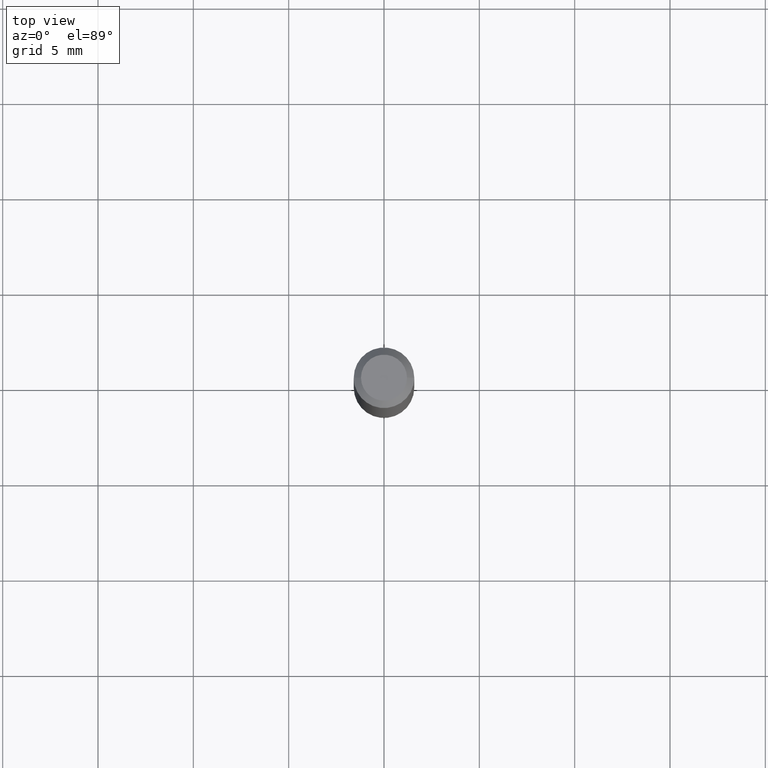
[diagram: clean part render]
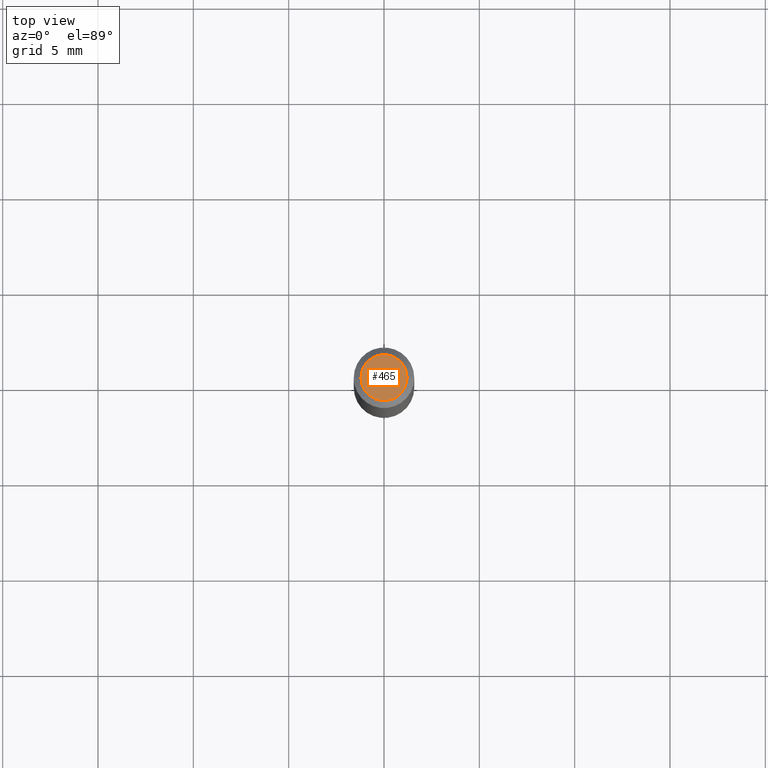
[diagram: same view with one face highlighted and labeled with its STEP entity id]
A machine part, top view. The second image highlights one B-rep face of the part: STEP entity #465.
In plain terms, the highlighted planar face has unit normal (0, -0, -1).
Its self-contained STEP definition (entity closure, byte-faithful):
#3 = CARTESIAN_POINT ( 'NONE',  ( -0.04749999999999999362, 3.578768372314215436E-16, 2.469815280770035755E-16 ) ) ;
#9 = AXIS2_PLACEMENT_3D ( 'NONE', #206, #92, #95 ) ;
#41 = FACE_OUTER_BOUND ( 'NONE', #254, .T. ) ;
#54 = ORIENTED_EDGE ( 'NONE', *, *, #400, .T. ) ;
#70 = DIRECTION ( 'NONE',  ( -1.000000000000000000, 6.982962677686265922E-15, -4.876176775795935793E-29 ) ) ;
#92 = DIRECTION ( 'NONE',  ( -2.445468806185136597E-29, 3.491481338843145583E-15, 1.000000000000000000 ) ) ;
#95 = DIRECTION ( 'NONE',  ( 1.000000000000000000, -6.982962677686267499E-15, 4.852736867747366768E-29 ) ) ;
#120 = DIRECTION ( 'NONE',  ( -2.445468806185136597E-29, 3.491481338843145583E-15, 1.000000000000000000 ) ) ;
#173 = CIRCLE ( 'NONE', #238, 0.04749999999999999362 ) ;
#176 = CARTESIAN_POINT ( 'NONE',  ( 0.04749999999999999362, -4.035134999187574186E-16, 2.469815280770085059E-16 ) ) ;
#182 = DIRECTION ( 'NONE',  ( 2.438088387897960049E-29, -3.491481338843145188E-15, -1.000000000000000000 ) ) ;
#206 = CARTESIAN_POINT ( 'NONE',  ( -6.039856226162565090E-45, 8.623313963198306787E-31, 2.469815280770059421E-16 ) ) ;
#214 = CIRCLE ( 'NONE', #9, 0.04749999999999999362 ) ;
#218 = EDGE_CURVE ( 'NONE', #350, #436, #214, .T. ) ;
#238 = AXIS2_PLACEMENT_3D ( 'NONE', #305, #120, #264 ) ;
#254 = EDGE_LOOP ( 'NONE', ( #54, #290 ) ) ;
#264 = DIRECTION ( 'NONE',  ( 1.000000000000000000, -6.982962677686267499E-15, 4.852736867747366768E-29 ) ) ;
#290 = ORIENTED_EDGE ( 'NONE', *, *, #218, .T. ) ;
#305 = CARTESIAN_POINT ( 'NONE',  ( -6.039856226162565090E-45, 8.623313963198306787E-31, 2.469815280770059421E-16 ) ) ;
#333 = PLANE ( 'NONE',  #336 ) ;
#336 = AXIS2_PLACEMENT_3D ( 'NONE', #399, #182, #70 ) ;
#350 = VERTEX_POINT ( 'NONE', #176 ) ;
#399 = CARTESIAN_POINT ( 'NONE',  ( 3.316907271900976096E-16, 0.04749999999999999362, -4.235459955654642541E-17 ) ) ;
#400 = EDGE_CURVE ( 'NONE', #436, #350, #173, .T. ) ;
#436 = VERTEX_POINT ( 'NONE', #3 ) ;
#465 = ADVANCED_FACE ( 'NONE', ( #41 ), #333, .F. ) ;